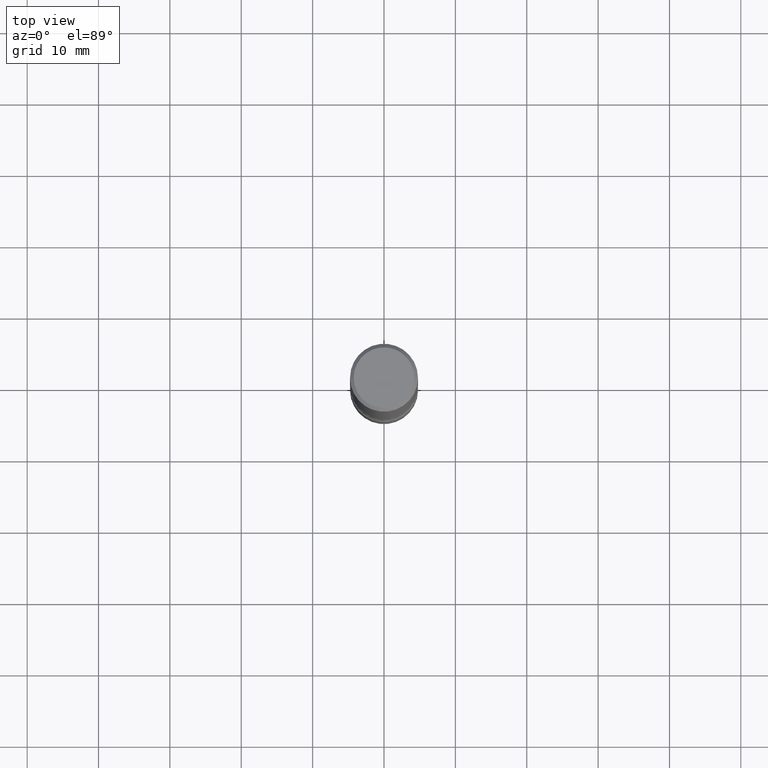
[diagram: clean part render]
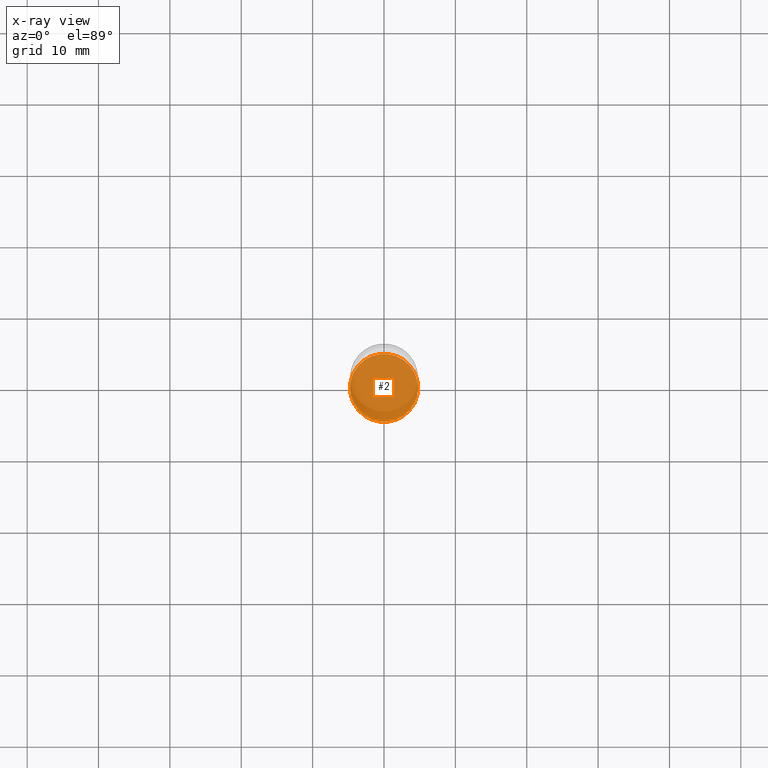
[diagram: x-ray — body ghosted, one internal face saturated and labeled with its STEP entity id]
A machine part, top view, then the same camera in x-ray: the body is ghosted and one INTERNAL B-rep face — a face not visible from any outside direction — is saturated and labeled: STEP entity #2.
In plain terms, the highlighted planar face has unit normal (0, -0, -1).
Its self-contained STEP definition (entity closure, byte-faithful):
#2 = ADVANCED_FACE ( 'NONE', ( #99 ), #320, .F. ) ;
#19 = CARTESIAN_POINT ( 'NONE',  ( -0.1875000000000000833, -1.121960778359092137E-14, -3.250000000000000444 ) ) ;
#27 = ORIENTED_EDGE ( 'NONE', *, *, #306, .T. ) ;
#47 = AXIS2_PLACEMENT_3D ( 'NONE', #350, #525, #233 ) ;
#73 = CARTESIAN_POINT ( 'NONE',  ( 7.947773620101696182E-29, -1.134731435124022600E-14, -3.250000000000000444 ) ) ;
#99 = FACE_OUTER_BOUND ( 'NONE', #179, .T. ) ;
#125 = CARTESIAN_POINT ( 'NONE',  ( 0.1875000000000000833, -1.265661985330640259E-14, -3.250000000000000444 ) ) ;
#159 = DIRECTION ( 'NONE',  ( -2.445468806185136597E-29, 3.491481338843145583E-15, 1.000000000000000000 ) ) ;
#179 = EDGE_LOOP ( 'NONE', ( #192, #27 ) ) ;
#192 = ORIENTED_EDGE ( 'NONE', *, *, #423, .T. ) ;
#233 = DIRECTION ( 'NONE',  ( -1.000000000000000000, 6.982962677686265922E-15, -4.876176775795935793E-29 ) ) ;
#267 = VERTEX_POINT ( 'NONE', #19 ) ;
#306 = EDGE_CURVE ( 'NONE', #267, #437, #399, .T. ) ;
#320 = PLANE ( 'NONE',  #47 ) ;
#327 = CIRCLE ( 'NONE', #471, 0.1875000000000000833 ) ;
#350 = CARTESIAN_POINT ( 'NONE',  ( 7.947773620101696182E-29, -1.134731435124022600E-14, -3.250000000000000444 ) ) ;
#369 = AXIS2_PLACEMENT_3D ( 'NONE', #371, #544, #536 ) ;
#371 = CARTESIAN_POINT ( 'NONE',  ( 7.947773620101696182E-29, -1.134731435124022600E-14, -3.250000000000000444 ) ) ;
#399 = CIRCLE ( 'NONE', #369, 0.1875000000000000833 ) ;
#416 = DIRECTION ( 'NONE',  ( 1.000000000000000000, -6.982962677686269866E-15, 0.000000000000000000 ) ) ;
#423 = EDGE_CURVE ( 'NONE', #437, #267, #327, .T. ) ;
#437 = VERTEX_POINT ( 'NONE', #125 ) ;
#471 = AXIS2_PLACEMENT_3D ( 'NONE', #73, #159, #416 ) ;
#525 = DIRECTION ( 'NONE',  ( 2.438088387897960049E-29, -3.491481338843145188E-15, -1.000000000000000000 ) ) ;
#536 = DIRECTION ( 'NONE',  ( 1.000000000000000000, -6.982962677686269866E-15, 0.000000000000000000 ) ) ;
#544 = DIRECTION ( 'NONE',  ( -2.445468806185136597E-29, 3.491481338843145583E-15, 1.000000000000000000 ) ) ;